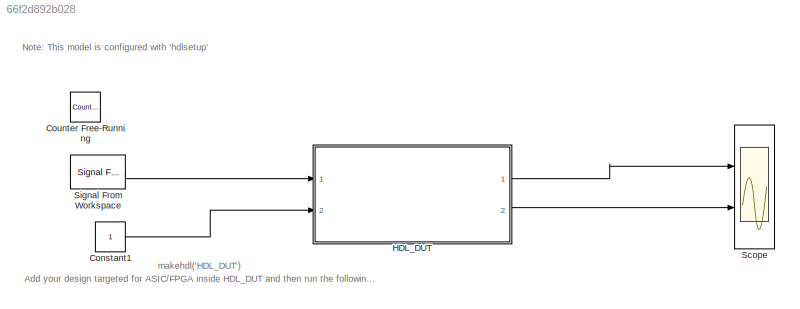
MODEL slx_66f2d892b028
KIND model
CONFIG AbsTol = auto
CONFIG EnableMultiTasking = off
CONFIG FixedStep = auto
CONFIG MaxStep = auto
CONFIG MinStep = auto
CONFIG RelTol = 1e-3
CONFIG SampleTimeConstraint = Unconstrained
CONFIG SolverName = VariableStepAuto
CONFIG StartTime = 0.0
CONFIG StopTime = 10.0
BLOCK [Constant] Constant1
  OutDataTypeStr = boolean
  SampleTime = -1
BLOCK [Reference] Counter Free-Running  REF=simulink/Sources/Counter
Free-Running
  Commented = on
  NameLocation = left
  Ports = [0, 1]
  SourceBlock = simulink/Sources/Counter\nFree-Running
  SourceProductBaseCode = SL
  SourceType = Counter Free-Running
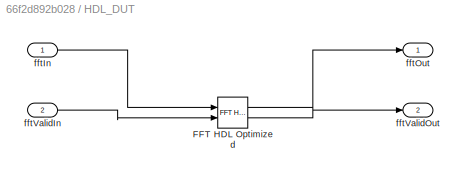
BLOCK [SubSystem] HDL_DUT
  Ports = [2, 2]
  RequestExecContextInheritance = off
BLOCK [Reference] HDL_DUT/FFT HDL Optimized  REF=dsphdlxfrm/FFT
HDL Optimized
  Ports = [2, 2]
  SourceBlock = dsphdlxfrm/FFT\nHDL Optimized
  SourceProductBaseCode = DS
  SourceType = FFT HDL Optimized
BLOCK [Inport] HDL_DUT/fftIn
  OutDataTypeStr = int16
  PortDimensions = 1
  SampleTime = 1
  SignalType = complex
BLOCK [Outport] HDL_DUT/fftOut
  SampleTime = 1
BLOCK [Inport] HDL_DUT/fftValidIn
  OutDataTypeStr = boolean
  Port = 2
  PortDimensions = 1
  SampleTime = 1
BLOCK [Outport] HDL_DUT/fftValidOut
  Port = 2
  SampleTime = 1
BLOCK [Scope] Scope
  Floating = off
  NumInputPorts = 2
  Ports = [2]
  ScopeSpecificationString = Simulink.scopes.TimeScopeBlockCfg('CurrentConfiguration', extmgr.ConfigurationSet(extmgr.Configuration('Core','General UI',true),extmgr.Configuration('Core','Source UI',true),extmgr.Configuration('Sources','WiredSimulink',true,'DataLoggingLimitDataPoints',true,'DataLoggingSaveFormat','Array','DataLoggingDecimation','1','DataLoggingDecimateData',true),extmgr.Configuration('Visuals','Time Domain',tr...<+3091ch>
BLOCK [Reference] Signal From Workspace  REF=dspsrcs4/Signal From
Workspace
  Ports = [0, 1]
  SourceBlock = dspsrcs4/Signal From\nWorkspace
  SourceProductBaseCode = DS
  SourceType = Signal From Workspace
ANNOTATION (root): Add your design targeted for ASIC/FPGA inside HDL_DUT and then run the following command: makehdl('HDL_DUT')
ANNOTATION (root): Note: This model is configured with ' hdlsetup '
LINE Constant1:1 -> HDL_DUT:2
LINE HDL_DUT/FFT HDL Optimized:1 -> HDL_DUT/fftOut:1
LINE HDL_DUT/FFT HDL Optimized:2 -> HDL_DUT/fftValidOut:1
LINE HDL_DUT/fftIn:1 -> HDL_DUT/FFT HDL Optimized:1
LINE HDL_DUT/fftValidIn:1 -> HDL_DUT/FFT HDL Optimized:2
LINE HDL_DUT:1 -> Scope:1
LINE HDL_DUT:2 -> Scope:2
LINE Signal From Workspace:1 -> HDL_DUT:1
